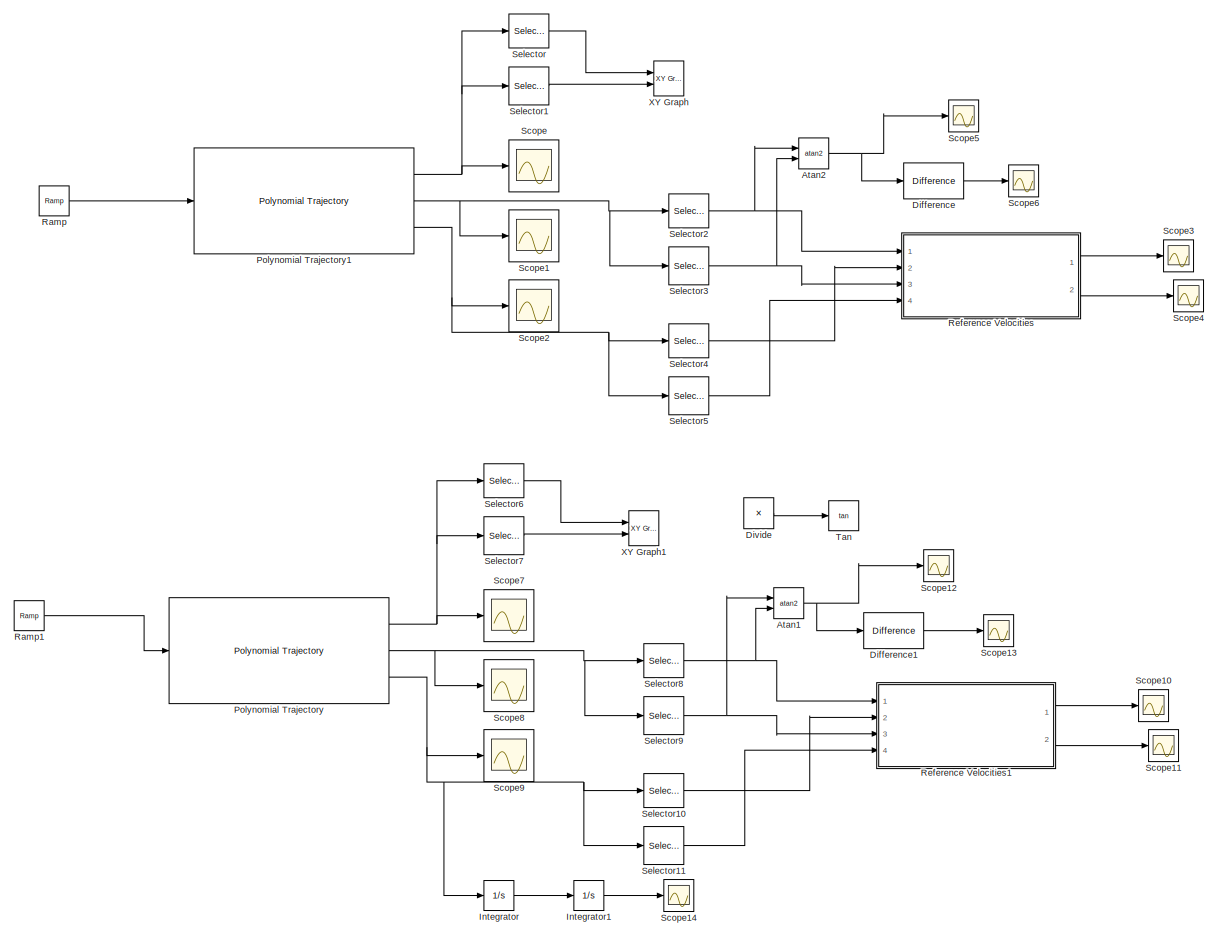
[diagram: root canvas - part 1/1, most of the canvas]
MODEL slx_f95a120c79f4
KIND model
CONFIG AbsTol = auto
CONFIG EnableMultiTasking = off
CONFIG FixedStep = auto
CONFIG MaxStep = auto
CONFIG MinStep = auto
CONFIG RelTol = 1e-3
CONFIG SampleTimeConstraint = Unconstrained
CONFIG Solver = VariableStepAuto
CONFIG SolverName = VariableStepAuto
CONFIG StartTime = 0.0
CONFIG StopTime = 10.0
BLOCK [Trigonometry] Atan1
  Operator = atan2
  OutputSignalType = real
  Ports = [2, 1]
BLOCK [Trigonometry] Atan2
  Commented = on
  Operator = atan2
  Ports = [2, 1]
BLOCK [Reference] Difference  REF=simulink/Discrete/Difference
  Commented = on
  Ports = [1, 1]
  SourceBlock = simulink/Discrete/Difference
  SourceProductBaseCode = SL
  SourceType = Difference
BLOCK [Reference] Difference1  REF=simulink/Discrete/Difference
  Ports = [1, 1]
  SourceBlock = simulink/Discrete/Difference
  SourceProductBaseCode = SL
  SourceType = Difference
BLOCK [Product] Divide
  Inputs = */
  Ports = [2, 1]
BLOCK [Integrator] Integrator
  Ports = [1, 1]
BLOCK [Integrator] Integrator1
  Ports = [1, 1]
BLOCK [Reference] Polynomial Trajectory  REF=robotcorelib/Polynomial Trajectory
  Ports = [1, 3]
  SourceBlock = robotcorelib/Polynomial Trajectory
  SourceProductBaseCode = NV,RO,RR
  SourceType = robotics.slcore.internal.block.PolyTrajSys
BLOCK [Reference] Polynomial Trajectory1  REF=robotcorelib/Polynomial Trajectory
  Commented = on
  Ports = [1, 3]
  SourceBlock = robotcorelib/Polynomial Trajectory
  SourceProductBaseCode = NV,RO,RR
  SourceType = robotics.slcore.internal.block.PolyTrajSys
BLOCK [Reference] Ramp  REF=simulink/Sources/Ramp
  Commented = on
  Ports = [0, 1]
  SourceBlock = simulink/Sources/Ramp
  SourceProductBaseCode = SL
  SourceType = Ramp
BLOCK [Reference] Ramp1  REF=simulink/Sources/Ramp
  Ports = [0, 1]
  SourceBlock = simulink/Sources/Ramp
  SourceProductBaseCode = SL
  SourceType = Ramp
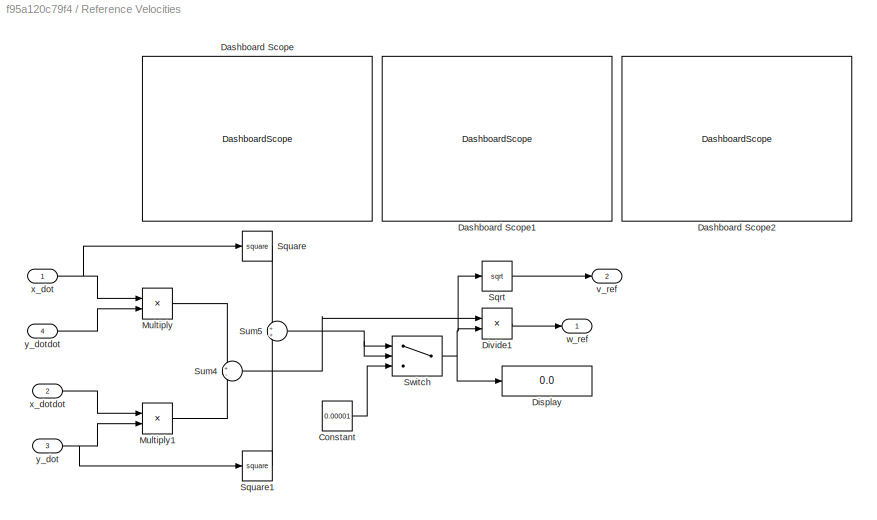
BLOCK [SubSystem] Reference Velocities
  Commented = on
  Ports = [4, 2]
  RequestExecContextInheritance = off
BLOCK [Constant] Reference Velocities/Constant
  Value = 0.00001
BLOCK [DashboardScope] Reference Velocities/Dashboard Scope
BLOCK [DashboardScope] Reference Velocities/Dashboard Scope1
BLOCK [DashboardScope] Reference Velocities/Dashboard Scope2
BLOCK [Display] Reference Velocities/Display
  Decimation = 1
  Ports = [1]
BLOCK [Product] Reference Velocities/Divide1
  Inputs = */
  OutMin = [0.0000001]
  Ports = [2, 1]
BLOCK [Product] Reference Velocities/Multiply
  Ports = [2, 1]
BLOCK [Product] Reference Velocities/Multiply1
  Ports = [2, 1]
BLOCK [Sqrt] Reference Velocities/Sqrt
BLOCK [Math] Reference Velocities/Square
  Operator = square
  Ports = [1, 1]
  SignedPower = on
BLOCK [Math] Reference Velocities/Square1
  Operator = square
  Ports = [1, 1]
  SignedPower = on
BLOCK [Sum] Reference Velocities/Sum4
  Inputs = +-
  Ports = [2, 1]
BLOCK [Sum] Reference Velocities/Sum5
  Ports = [2, 1]
BLOCK [Switch] Reference Velocities/Switch
  Criteria = u2 ~= 0
  InputSameDT = off
  SaturateOnIntegerOverflow = off
BLOCK [Outport] Reference Velocities/v_ref
  Port = 2
  VectorParamsAs1DForOutWhenUnconnected = off
BLOCK [Outport] Reference Velocities/w_ref
  VectorParamsAs1DForOutWhenUnconnected = off
BLOCK [Inport] Reference Velocities/x_dot
BLOCK [Inport] Reference Velocities/x_dotdot
  Port = 2
BLOCK [Inport] Reference Velocities/y_dot
  Port = 3
BLOCK [Inport] Reference Velocities/y_dotdot
  Port = 4
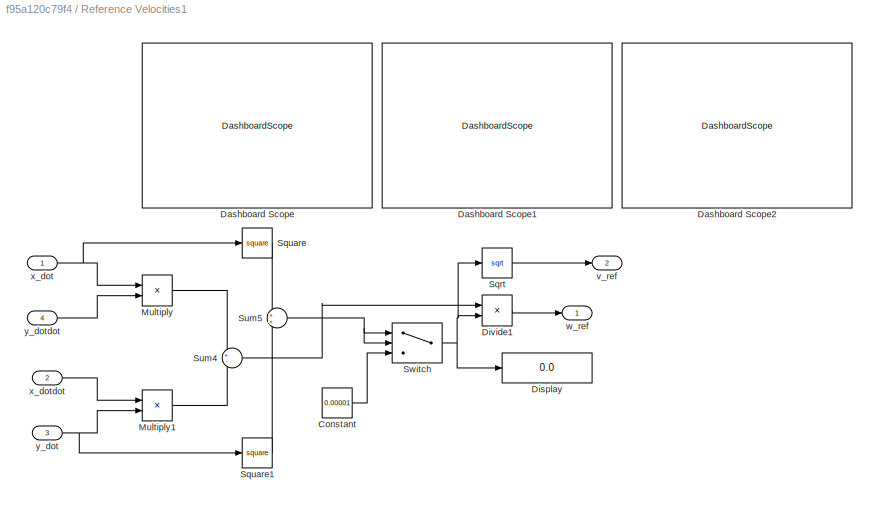
BLOCK [SubSystem] Reference Velocities1
  Ports = [4, 2]
  RequestExecContextInheritance = off
BLOCK [Constant] Reference Velocities1/Constant
  Value = 0.00001
BLOCK [DashboardScope] Reference Velocities1/Dashboard Scope
BLOCK [DashboardScope] Reference Velocities1/Dashboard Scope1
BLOCK [DashboardScope] Reference Velocities1/Dashboard Scope2
BLOCK [Display] Reference Velocities1/Display
  Decimation = 1
  Ports = [1]
BLOCK [Product] Reference Velocities1/Divide1
  Inputs = */
  OutMin = [0.0000001]
  Ports = [2, 1]
BLOCK [Product] Reference Velocities1/Multiply
  Ports = [2, 1]
BLOCK [Product] Reference Velocities1/Multiply1
  Ports = [2, 1]
BLOCK [Sqrt] Reference Velocities1/Sqrt
BLOCK [Math] Reference Velocities1/Square
  Operator = square
  Ports = [1, 1]
  SignedPower = on
BLOCK [Math] Reference Velocities1/Square1
  Operator = square
  Ports = [1, 1]
  SignedPower = on
BLOCK [Sum] Reference Velocities1/Sum4
  Inputs = +-
  Ports = [2, 1]
BLOCK [Sum] Reference Velocities1/Sum5
  Ports = [2, 1]
BLOCK [Switch] Reference Velocities1/Switch
  Criteria = u2 ~= 0
  InputSameDT = off
  SaturateOnIntegerOverflow = off
BLOCK [Outport] Reference Velocities1/v_ref
  Port = 2
  VectorParamsAs1DForOutWhenUnconnected = off
BLOCK [Outport] Reference Velocities1/w_ref
  VectorParamsAs1DForOutWhenUnconnected = off
BLOCK [Inport] Reference Velocities1/x_dot
BLOCK [Inport] Reference Velocities1/x_dotdot
  Port = 2
BLOCK [Inport] Reference Velocities1/y_dot
  Port = 3
BLOCK [Inport] Reference Velocities1/y_dotdot
  Port = 4
BLOCK [Scope] Scope
  Commented = on
  Floating = off
  NumInputPorts = 1
  Ports = [1]
  ScopeSpecificationString = Simulink.scopes.TimeScopeBlockCfg('CurrentConfiguration', extmgr.ConfigurationSet(extmgr.Configuration('Core','General UI',true),extmgr.Configuration('Core','Source UI',true),extmgr.Configuration('Sources','WiredSimulink',true,'DataLoggingVariableName','ScopeData5'),extmgr.Configuration('Visuals','Time Domain',true,'SerializedDisplays',{struct('MinYLimReal','-0.375','MaxYLimReal','3.375','YLabelRe...<+1429ch>
BLOCK [Scope] Scope1
  Commented = on
  Floating = off
  NumInputPorts = 1
  Ports = [1]
  ScopeSpecificationString = Simulink.scopes.TimeScopeBlockCfg('CurrentConfiguration', extmgr.ConfigurationSet(extmgr.Configuration('Core','General UI',true),extmgr.Configuration('Core','Source UI',true),extmgr.Configuration('Sources','WiredSimulink',true,'DataLoggingVariableName','ScopeData6'),extmgr.Configuration('Visuals','Time Domain',true,'SerializedDisplays',{struct('MinYLimReal','-1.875','MaxYLimReal','1.875','YLabelRe...<+1375ch>
BLOCK [Scope] Scope10
  Floating = off
  NumInputPorts = 1
  Ports = [1]
  ScopeSpecificationString = Simulink.scopes.TimeScopeBlockCfg('CurrentConfiguration', extmgr.ConfigurationSet(extmgr.Configuration('Core','General UI',true),extmgr.Configuration('Core','Source UI',true),extmgr.Configuration('Sources','WiredSimulink',true,'DataLoggingVariableName','ScopeData1'),extmgr.Configuration('Visuals','Time Domain',true,'SerializedDisplays',{struct('MinYLimReal','-1.00000','MaxYLimReal','1.00000','YLab...<+1411ch>
BLOCK [Scope] Scope11
  Floating = off
  NumInputPorts = 1
  Ports = [1]
  ScopeSpecificationString = Simulink.scopes.TimeScopeBlockCfg('CurrentConfiguration', extmgr.ConfigurationSet(extmgr.Configuration('Core','General UI',true),extmgr.Configuration('Core','Source UI',true),extmgr.Configuration('Sources','WiredSimulink',true,'DataLoggingVariableName','ScopeData2'),extmgr.Configuration('Visuals','Time Domain',true,'SerializedDisplays',{struct('MinYLimReal','-0.12728','MaxYLimReal','1.14551','YLab...<+1411ch>
BLOCK [Scope] Scope12
  Floating = off
  NumInputPorts = 1
  Ports = [1]
  ScopeSpecificationString = Simulink.scopes.TimeScopeBlockCfg('CurrentConfiguration', extmgr.ConfigurationSet(extmgr.Configuration('Core','General UI',true),extmgr.Configuration('Core','Source UI',true),extmgr.Configuration('Sources','WiredSimulink',true,'DataLoggingVariableName','ScopeData3'),extmgr.Configuration('Visuals','Time Domain',true,'SerializedDisplays',{struct('MinYLimReal','-0.98175','MaxYLimReal','0.98175','YLab...<+1393ch>
BLOCK [Scope] Scope13
  Floating = off
  NumInputPorts = 1
  Ports = [1]
  ScopeSpecificationString = Simulink.scopes.TimeScopeBlockCfg('CurrentConfiguration', extmgr.ConfigurationSet(extmgr.Configuration('Core','General UI',true),extmgr.Configuration('Core','Source UI',true),extmgr.Configuration('Sources','WiredSimulink',true,'DataLoggingVariableName','ScopeData4'),extmgr.Configuration('Visuals','Time Domain',true,'SerializedDisplays',{struct('MinYLimReal','-2.94524','MaxYLimReal','2.94524','YLab...<+1453ch>
BLOCK [Scope] Scope14
  Floating = off
  NumInputPorts = 1
  Ports = [1]
  ScopeSpecificationString = Simulink.scopes.TimeScopeBlockCfg('CurrentConfiguration', extmgr.ConfigurationSet(extmgr.Configuration('Core','General UI',true),extmgr.Configuration('Core','Source UI',true),extmgr.Configuration('Sources','WiredSimulink',true,'DataLoggingVariableName','ScopeData8'),extmgr.Configuration('Visuals','Time Domain',true,'SerializedDisplays',{struct('MinYLimReal','-0.38185','MaxYLimReal','3.43668','YLab...<+1417ch>
BLOCK [Scope] Scope2
  Commented = on
  Floating = off
  NumInputPorts = 1
  Ports = [1]
  ScopeSpecificationString = Simulink.scopes.TimeScopeBlockCfg('CurrentConfiguration', extmgr.ConfigurationSet(extmgr.Configuration('Core','General UI',true),extmgr.Configuration('Core','Source UI',true),extmgr.Configuration('Sources','WiredSimulink',true),extmgr.Configuration('Visuals','Time Domain',true,'SerializedDisplays',{struct('MinYLimReal','-7.5','MaxYLimReal','7.5','YLabelReal','','MinYLimMag','0.00000','MaxYLimMag',...<+1412ch>
BLOCK [Scope] Scope3
  Commented = on
  Floating = off
  NumInputPorts = 1
  Ports = [1]
  ScopeSpecificationString = Simulink.scopes.TimeScopeBlockCfg('CurrentConfiguration', extmgr.ConfigurationSet(extmgr.Configuration('Core','General UI',true),extmgr.Configuration('Core','Source UI',true),extmgr.Configuration('Sources','WiredSimulink',true,'DataLoggingVariableName','ScopeData1'),extmgr.Configuration('Visuals','Time Domain',true,'SerializedDisplays',{struct('MinYLimReal','-32017594796.12568','MaxYLimReal','3557...<+1486ch>
BLOCK [Scope] Scope4
  Commented = on
  Floating = off
  NumInputPorts = 1
  Ports = [1]
  ScopeSpecificationString = Simulink.scopes.TimeScopeBlockCfg('CurrentConfiguration', extmgr.ConfigurationSet(extmgr.Configuration('Core','General UI',true),extmgr.Configuration('Core','Source UI',true),extmgr.Configuration('Sources','WiredSimulink',true,'DataLoggingVariableName','ScopeData2'),extmgr.Configuration('Visuals','Time Domain',true,'SerializedDisplays',{struct('MinYLimReal','-0.9','MaxYLimReal','8.1','YLabelReal',...<+1386ch>
BLOCK [Scope] Scope5
  Commented = on
  Floating = off
  NumInputPorts = 1
  Ports = [1]
  ScopeSpecificationString = Simulink.scopes.TimeScopeBlockCfg('CurrentConfiguration', extmgr.ConfigurationSet(extmgr.Configuration('Core','General UI',true),extmgr.Configuration('Core','Source UI',true),extmgr.Configuration('Sources','WiredSimulink',true,'DataLoggingVariableName','ScopeData3'),extmgr.Configuration('Visuals','Time Domain',true,'SerializedDisplays',{struct('MinYLimReal','-3.1287','MaxYLimReal','1.37887','YLabe...<+1360ch>
BLOCK [Scope] Scope6
  Commented = on
  Floating = off
  NumInputPorts = 1
  Ports = [1]
  ScopeSpecificationString = Simulink.scopes.TimeScopeBlockCfg('CurrentConfiguration', extmgr.ConfigurationSet(extmgr.Configuration('Core','General UI',true),extmgr.Configuration('Core','Source UI',true),extmgr.Configuration('Sources','WiredSimulink',true,'DataLoggingVariableName','ScopeData4'),extmgr.Configuration('Visuals','Time Domain',true,'SerializedDisplays',{struct('MinYLimReal','-2.94524','MaxYLimReal','2.94524','YLab...<+1417ch>
BLOCK [Scope] Scope7
  Floating = off
  NumInputPorts = 1
  Ports = [1]
  ScopeSpecificationString = Simulink.scopes.TimeScopeBlockCfg('CurrentConfiguration', extmgr.ConfigurationSet(extmgr.Configuration('Core','General UI',true),extmgr.Configuration('Core','Source UI',true),extmgr.Configuration('Sources','WiredSimulink',true,'DataLoggingVariableName','ScopeData5'),extmgr.Configuration('Visuals','Time Domain',true,'SerializedDisplays',{struct('MinYLimReal','-0.375','MaxYLimReal','3.375','YLabelRe...<+1429ch>
BLOCK [Scope] Scope8
  Floating = off
  NumInputPorts = 1
  Ports = [1]
  ScopeSpecificationString = Simulink.scopes.TimeScopeBlockCfg('CurrentConfiguration', extmgr.ConfigurationSet(extmgr.Configuration('Core','General UI',true),extmgr.Configuration('Core','Source UI',true),extmgr.Configuration('Sources','WiredSimulink',true,'DataLoggingVariableName','ScopeData6'),extmgr.Configuration('Visuals','Time Domain',true,'SerializedDisplays',{struct('MinYLimReal','-0.9','MaxYLimReal','0.9','YLabelReal',...<+1417ch>
BLOCK [Scope] Scope9
  Floating = off
  NumInputPorts = 1
  Ports = [1]
  ScopeSpecificationString = Simulink.scopes.TimeScopeBlockCfg('CurrentConfiguration', extmgr.ConfigurationSet(extmgr.Configuration('Core','General UI',true),extmgr.Configuration('Core','Source UI',true),extmgr.Configuration('Sources','WiredSimulink',true,'DataLoggingVariableName','ScopeData7'),extmgr.Configuration('Visuals','Time Domain',true,'SerializedDisplays',{struct('MinYLimReal','-3.75','MaxYLimReal','3.75','YLabelReal...<+1457ch>
BLOCK [Selector] Selector
  Commented = on
  IndexOptions = Index vector (dialog)
  Indices = 1
  InputPortWidth = 2
  OutputSizes = 1
  Ports = [1, 1]
BLOCK [Selector] Selector1
  Commented = on
  IndexOptions = Index vector (dialog)
  Indices = 2
  InputPortWidth = 2
  OutputSizes = 1
  Ports = [1, 1]
BLOCK [Selector] Selector10
  IndexOptions = Index vector (dialog)
  Indices = 1
  InputPortWidth = 2
  OutputSizes = 1
  Ports = [1, 1]
BLOCK [Selector] Selector11
  IndexOptions = Index vector (dialog)
  Indices = 2
  InputPortWidth = 2
  OutputSizes = 1
  Ports = [1, 1]
BLOCK [Selector] Selector2
  Commented = on
  IndexOptions = Index vector (dialog)
  Indices = 1
  InputPortWidth = 2
  OutputSizes = 1
  Ports = [1, 1]
BLOCK [Selector] Selector3
  Commented = on
  IndexOptions = Index vector (dialog)
  Indices = 2
  InputPortWidth = 2
  OutputSizes = 1
  Ports = [1, 1]
BLOCK [Selector] Selector4
  Commented = on
  IndexOptions = Index vector (dialog)
  Indices = 1
  InputPortWidth = 2
  OutputSizes = 1
  Ports = [1, 1]
BLOCK [Selector] Selector5
  Commented = on
  IndexOptions = Index vector (dialog)
  Indices = 2
  InputPortWidth = 2
  OutputSizes = 1
  Ports = [1, 1]
BLOCK [Selector] Selector6
  IndexOptions = Index vector (dialog)
  Indices = 1
  InputPortWidth = 2
  OutputSizes = 1
  Ports = [1, 1]
BLOCK [Selector] Selector7
  IndexOptions = Index vector (dialog)
  Indices = 2
  InputPortWidth = 2
  OutputSizes = 1
  Ports = [1, 1]
BLOCK [Selector] Selector8
  IndexOptions = Index vector (dialog)
  Indices = 1
  InputPortWidth = 2
  OutputSizes = 1
  Ports = [1, 1]
BLOCK [Selector] Selector9
  IndexOptions = Index vector (dialog)
  Indices = 2
  InputPortWidth = 2
  OutputSizes = 1
  Ports = [1, 1]
BLOCK [Trigonometry] Tan
  Operator = tan
  Ports = [1, 1]
BLOCK [Reference] XY Graph  REF=simulink/Sinks/XY Graph
  Commented = on
  Ports = [2]
  SourceBlock = simulink/Sinks/XY Graph
  SourceProductBaseCode = SL
  SourceType = XY scope.
BLOCK [Reference] XY Graph1  REF=simulink/Sinks/XY Graph
  Ports = [2]
  SourceBlock = simulink/Sinks/XY Graph
  SourceProductBaseCode = SL
  SourceType = XY scope.
NET Atan1:1 -> Difference1:1, Scope12:1
NET Atan2:1 -> Difference:1, Scope5:1
LINE Difference1:1 -> Scope13:1
LINE Difference:1 -> Scope6:1
LINE Divide:1 -> Tan:1
LINE Integrator1:1 -> Scope14:1
LINE Integrator:1 -> Integrator1:1
NET Polynomial Trajectory1:1 -> Scope:1, Selector1:1, Selector:1
NET Polynomial Trajectory1:2 -> Scope1:1, Selector2:1, Selector3:1
NET Polynomial Trajectory1:3 -> Scope2:1, Selector4:1, Selector5:1
NET Polynomial Trajectory:1 -> Scope7:1, Selector6:1, Selector7:1
NET Polynomial Trajectory:2 -> Scope8:1, Selector8:1, Selector9:1
NET Polynomial Trajectory:3 -> Integrator:1, Scope9:1, Selector10:1, Selector11:1
LINE Ramp1:1 -> Polynomial Trajectory:1
LINE Ramp:1 -> Polynomial Trajectory1:1
LINE Reference Velocities/Constant:1 -> Reference Velocities/Switch:3
LINE Reference Velocities/Divide1:1 -> Reference Velocities/w_ref:1
LINE Reference Velocities/Multiply1:1 -> Reference Velocities/Sum4:2
LINE Reference Velocities/Multiply:1 -> Reference Velocities/Sum4:1
LINE Reference Velocities/Sqrt:1 -> Reference Velocities/v_ref:1
LINE Reference Velocities/Square1:1 -> Reference Velocities/Sum5:2
LINE Reference Velocities/Square:1 -> Reference Velocities/Sum5:1
LINE Reference Velocities/Sum4:1 -> Reference Velocities/Divide1:1
NET Reference Velocities/Sum5:1 -> Reference Velocities/Switch:1, Reference Velocities/Switch:2
NET Reference Velocities/Switch:1 -> Reference Velocities/Display:1, Reference Velocities/Divide1:2, Reference Velocities/Sqrt:1
NET Reference Velocities/x_dot:1 -> Reference Velocities/Multiply:1, Reference Velocities/Square:1
LINE Reference Velocities/x_dotdot:1 -> Reference Velocities/Multiply1:1
NET Reference Velocities/y_dot:1 -> Reference Velocities/Multiply1:2, Reference Velocities/Square1:1
LINE Reference Velocities/y_dotdot:1 -> Reference Velocities/Multiply:2
LINE Reference Velocities1/Constant:1 -> Reference Velocities1/Switch:3
LINE Reference Velocities1/Divide1:1 -> Reference Velocities1/w_ref:1
LINE Reference Velocities1/Multiply1:1 -> Reference Velocities1/Sum4:2
LINE Reference Velocities1/Multiply:1 -> Reference Velocities1/Sum4:1
LINE Reference Velocities1/Sqrt:1 -> Reference Velocities1/v_ref:1
LINE Reference Velocities1/Square1:1 -> Reference Velocities1/Sum5:2
LINE Reference Velocities1/Square:1 -> Reference Velocities1/Sum5:1
LINE Reference Velocities1/Sum4:1 -> Reference Velocities1/Divide1:1
NET Reference Velocities1/Sum5:1 -> Reference Velocities1/Switch:1, Reference Velocities1/Switch:2
NET Reference Velocities1/Switch:1 -> Reference Velocities1/Display:1, Reference Velocities1/Divide1:2, Reference Velocities1/Sqrt:1
NET Reference Velocities1/x_dot:1 -> Reference Velocities1/Multiply:1, Reference Velocities1/Square:1
LINE Reference Velocities1/x_dotdot:1 -> Reference Velocities1/Multiply1:1
NET Reference Velocities1/y_dot:1 -> Reference Velocities1/Multiply1:2, Reference Velocities1/Square1:1
LINE Reference Velocities1/y_dotdot:1 -> Reference Velocities1/Multiply:2
LINE Reference Velocities1:1 -> Scope10:1
LINE Reference Velocities1:2 -> Scope11:1
LINE Reference Velocities:1 -> Scope3:1
LINE Reference Velocities:2 -> Scope4:1
LINE Selector10:1 -> Reference Velocities1:2
LINE Selector11:1 -> Reference Velocities1:4
LINE Selector1:1 -> XY Graph:2
NET Selector2:1 -> Atan2:1, Reference Velocities:1
NET Selector3:1 -> Atan2:2, Reference Velocities:3
LINE Selector4:1 -> Reference Velocities:2
LINE Selector5:1 -> Reference Velocities:4
LINE Selector6:1 -> XY Graph1:1
LINE Selector7:1 -> XY Graph1:2
NET Selector8:1 -> Atan1:2, Reference Velocities1:1
NET Selector9:1 -> Atan1:1, Reference Velocities1:3
LINE Selector:1 -> XY Graph:1
note: NET lines group one-source signal fan-out (src -> all destinations, sorted); 1:1 wires keep LINE
